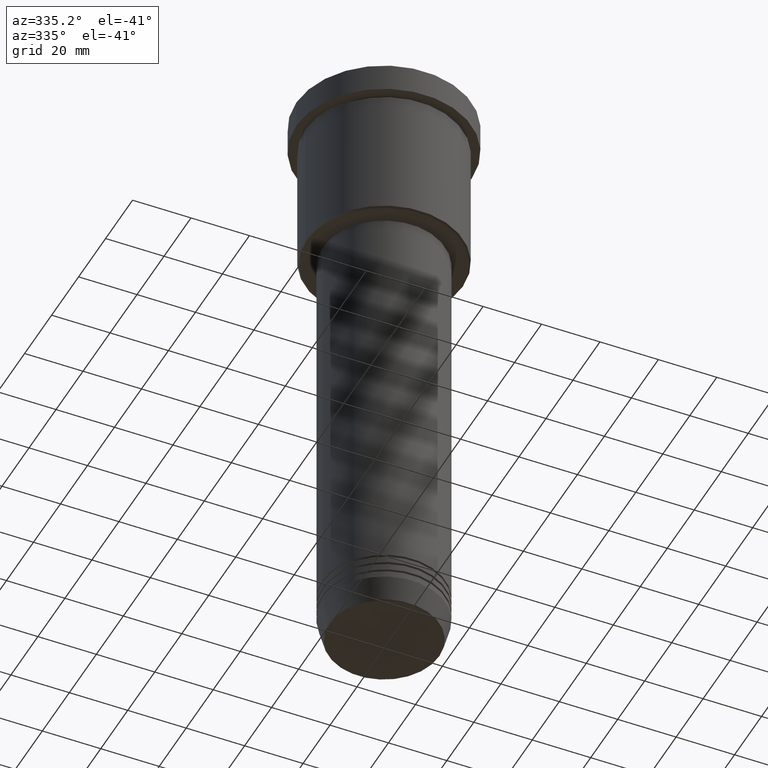
[diagram: clean part render]
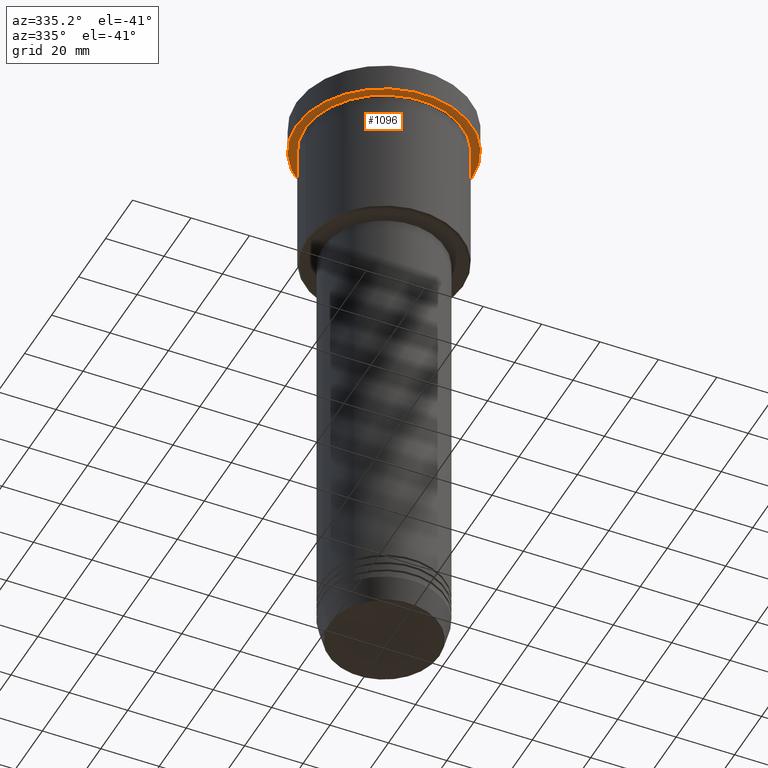
[diagram: same view with one face highlighted and labeled with its STEP entity id]
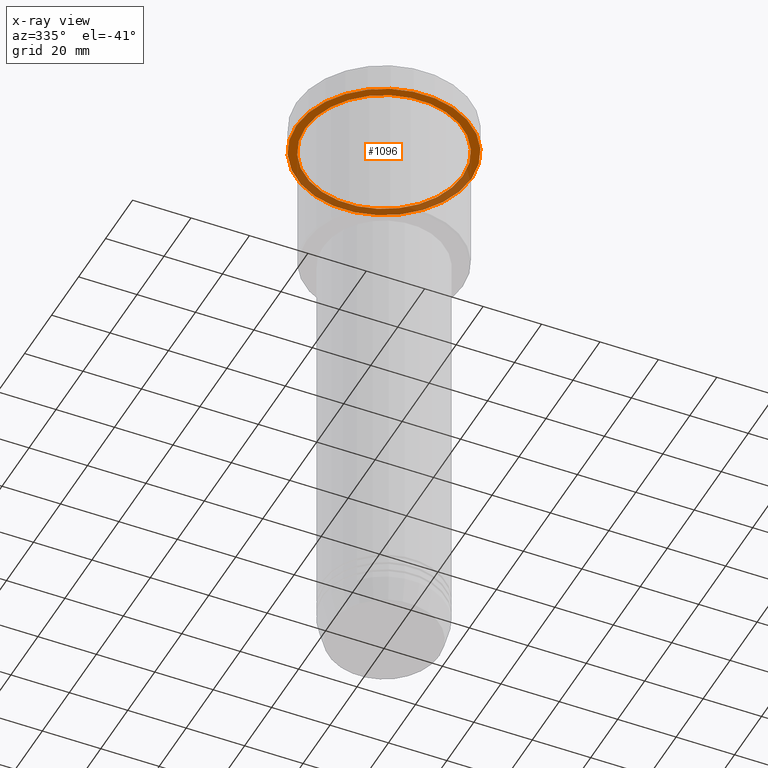
[diagram: x-ray of the same camera — body ghosted, the highlighted face saturated]
A machine part, auxiliary view. The second image highlights one B-rep face of the part: STEP entity #1096.
The next image is the same camera in x-ray: the body ghosted, the highlighted face saturated — about 38% of this face is hidden behind the body in this view.
In plain terms, the highlighted planar face has unit normal (0, 0, -1).
Its self-contained STEP definition (entity closure, byte-faithful):
#15 = CIRCLE ( 'NONE', #1139, 27.00000000000000355 ) ;
#37 = CARTESIAN_POINT ( 'NONE',  ( 0.000000000000000000, 0.000000000000000000, -9.999999999999992895 ) ) ;
#70 = CARTESIAN_POINT ( 'NONE',  ( 0.000000000000000000, 30.00000000000000000, -9.999999999999992895 ) ) ;
#96 = EDGE_LOOP ( 'NONE', ( #262, #710 ) ) ;
#116 = CARTESIAN_POINT ( 'NONE',  ( 27.00000000000000355, 3.306546357697854128E-15, -9.999999999999992895 ) ) ;
#149 = CIRCLE ( 'NONE', #455, 30.00000000000000000 ) ;
#182 = CARTESIAN_POINT ( 'NONE',  ( -30.00000000000000000, 3.673940397442059178E-15, -9.999999999999992895 ) ) ;
#209 = CARTESIAN_POINT ( 'NONE',  ( -27.00000000000000355, 0.000000000000000000, -9.999999999999992895 ) ) ;
#226 = DIRECTION ( 'NONE',  ( -1.000000000000000000, 0.000000000000000000, 0.000000000000000000 ) ) ;
#262 = ORIENTED_EDGE ( 'NONE', *, *, #501, .T. ) ;
#305 = DIRECTION ( 'NONE',  ( -0.000000000000000000, -0.000000000000000000, 1.000000000000000000 ) ) ;
#355 = VERTEX_POINT ( 'NONE', #182 ) ;
#399 = VERTEX_POINT ( 'NONE', #209 ) ;
#410 = CIRCLE ( 'NONE', #712, 27.00000000000000355 ) ;
#416 = CARTESIAN_POINT ( 'NONE',  ( 0.000000000000000000, 0.000000000000000000, -9.999999999999992895 ) ) ;
#425 = FACE_OUTER_BOUND ( 'NONE', #1104, .T. ) ;
#427 = DIRECTION ( 'NONE',  ( -0.000000000000000000, -0.000000000000000000, 1.000000000000000000 ) ) ;
#455 = AXIS2_PLACEMENT_3D ( 'NONE', #598, #427, #689 ) ;
#501 = EDGE_CURVE ( 'NONE', #399, #718, #410, .T. ) ;
#538 = PLANE ( 'NONE',  #759 ) ;
#574 = DIRECTION ( 'NONE',  ( -0.000000000000000000, -0.000000000000000000, 1.000000000000000000 ) ) ;
#598 = CARTESIAN_POINT ( 'NONE',  ( 0.000000000000000000, 0.000000000000000000, -9.999999999999992895 ) ) ;
#617 = EDGE_CURVE ( 'NONE', #837, #355, #149, .T. ) ;
#689 = DIRECTION ( 'NONE',  ( 1.000000000000000000, 0.000000000000000000, 0.000000000000000000 ) ) ;
#705 = DIRECTION ( 'NONE',  ( -0.000000000000000000, -0.000000000000000000, 1.000000000000000000 ) ) ;
#706 = CIRCLE ( 'NONE', #905, 30.00000000000000000 ) ;
#710 = ORIENTED_EDGE ( 'NONE', *, *, #937, .T. ) ;
#712 = AXIS2_PLACEMENT_3D ( 'NONE', #37, #574, #769 ) ;
#718 = VERTEX_POINT ( 'NONE', #116 ) ;
#759 = AXIS2_PLACEMENT_3D ( 'NONE', #70, #784, #1168 ) ;
#769 = DIRECTION ( 'NONE',  ( -1.000000000000000000, 0.000000000000000000, 0.000000000000000000 ) ) ;
#784 = DIRECTION ( 'NONE',  ( 0.000000000000000000, 0.000000000000000000, -1.000000000000000000 ) ) ;
#794 = DIRECTION ( 'NONE',  ( 1.000000000000000000, 0.000000000000000000, 0.000000000000000000 ) ) ;
#803 = CARTESIAN_POINT ( 'NONE',  ( 0.000000000000000000, 0.000000000000000000, -9.999999999999992895 ) ) ;
#821 = CARTESIAN_POINT ( 'NONE',  ( 30.00000000000000000, 0.000000000000000000, -9.999999999999992895 ) ) ;
#837 = VERTEX_POINT ( 'NONE', #821 ) ;
#857 = ORIENTED_EDGE ( 'NONE', *, *, #1079, .F. ) ;
#896 = FACE_BOUND ( 'NONE', #96, .T. ) ;
#905 = AXIS2_PLACEMENT_3D ( 'NONE', #803, #705, #794 ) ;
#937 = EDGE_CURVE ( 'NONE', #718, #399, #15, .T. ) ;
#966 = ORIENTED_EDGE ( 'NONE', *, *, #617, .F. ) ;
#1079 = EDGE_CURVE ( 'NONE', #355, #837, #706, .T. ) ;
#1096 = ADVANCED_FACE ( 'NONE', ( #896, #425 ), #538, .T. ) ;
#1104 = EDGE_LOOP ( 'NONE', ( #966, #857 ) ) ;
#1139 = AXIS2_PLACEMENT_3D ( 'NONE', #416, #305, #226 ) ;
#1168 = DIRECTION ( 'NONE',  ( -1.000000000000000000, 0.000000000000000000, -0.000000000000000000 ) ) ;